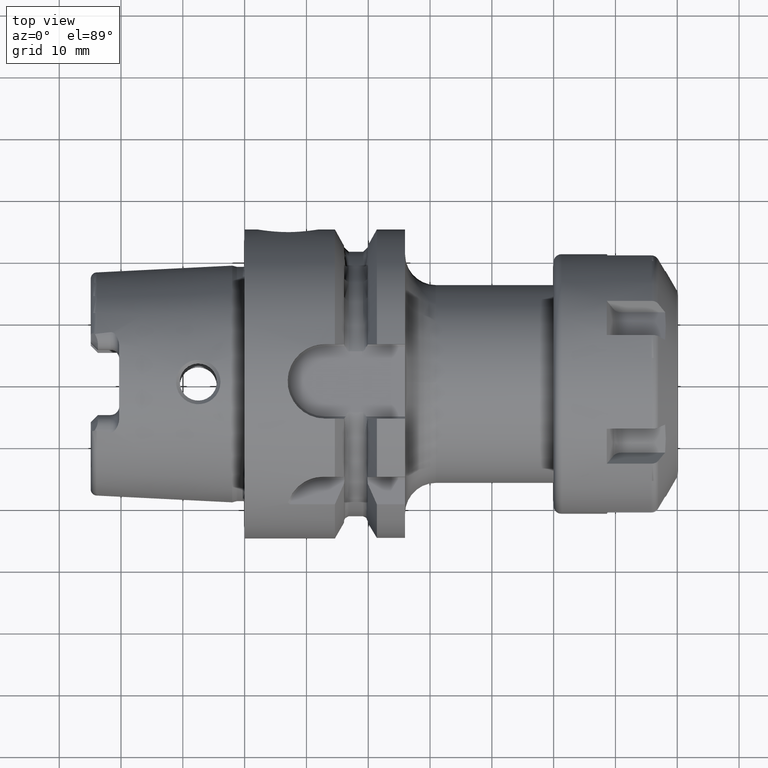
[diagram: clean part render]
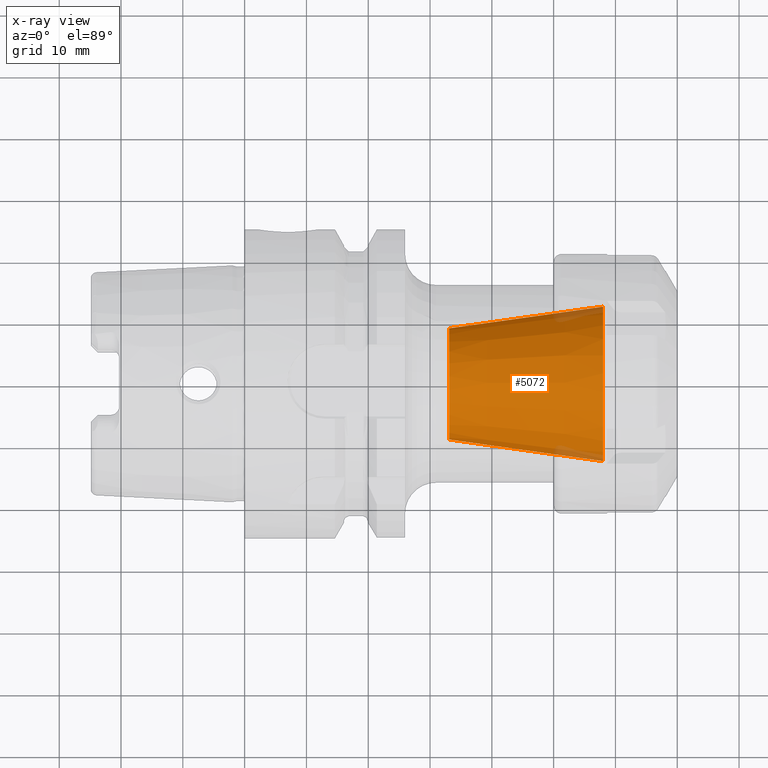
[diagram: x-ray — body ghosted, one internal face saturated and labeled with its STEP entity id]
A machine part, top view, then the same camera in x-ray: the body is ghosted and one INTERNAL B-rep face — a face not visible from any outside direction — is saturated and labeled: STEP entity #5072.
In plain terms, the highlighted conical surface has half-angle 8 deg.
Its self-contained STEP definition (entity closure, byte-faithful):
#1732=CARTESIAN_POINT('',(5.8E1,0.E0,0.E0));
#1733=DIRECTION('',(1.E0,0.E0,0.E0));
#1734=DIRECTION('',(0.E0,1.E0,0.E0));
#1735=AXIS2_PLACEMENT_3D('',#1732,#1733,#1734);
#1742=DIRECTION('',(-9.902680687416E-1,1.391731009601E-1,0.E0));
#1743=VECTOR('',#1742,2.514853787015E1);
#1744=CARTESIAN_POINT('',(5.8E1,-1.25E1,0.E0));
#1745=LINE('',#1744,#1743);
#1746=DIRECTION('',(-9.902680687416E-1,-1.391731009601E-1,0.E0));
#1747=VECTOR('',#1746,2.514853787015E1);
#1748=CARTESIAN_POINT('',(5.8E1,1.25E1,0.E0));
#1749=LINE('',#1748,#1747);
#1763=CARTESIAN_POINT('',(3.309620597166E1,0.E0,0.E0));
#1764=DIRECTION('',(1.E0,0.E0,0.E0));
#1765=DIRECTION('',(0.E0,1.E0,0.E0));
#1766=AXIS2_PLACEMENT_3D('',#1763,#1764,#1765);
#3249=CARTESIAN_POINT('',(3.309620597166E1,9.E0,0.E0));
#3251=VERTEX_POINT('',#3249);
#3253=CARTESIAN_POINT('',(3.309620597166E1,-9.E0,0.E0));
#3255=VERTEX_POINT('',#3253);
#3257=CARTESIAN_POINT('',(5.8E1,1.25E1,0.E0));
#3258=CARTESIAN_POINT('',(5.8E1,-1.25E1,0.E0));
#3259=VERTEX_POINT('',#3257);
#3260=VERTEX_POINT('',#3258);
#5058=CARTESIAN_POINT('',(4.554810298583E1,0.E0,0.E0));
#5059=DIRECTION('',(1.E0,0.E0,0.E0));
#5060=DIRECTION('',(0.E0,-1.E0,0.E0));
#5061=AXIS2_PLACEMENT_3D('',#5058,#5059,#5060);
#5062=CONICAL_SURFACE('',#5061,1.075E1,8.E0);
#5063=ORIENTED_EDGE('',*,*,#5051,.F.);
#5065=ORIENTED_EDGE('',*,*,#5064,.T.);
#5067=ORIENTED_EDGE('',*,*,#5066,.T.);
#5069=ORIENTED_EDGE('',*,*,#5068,.F.);
#5070=EDGE_LOOP('',(#5063,#5065,#5067,#5069));
#5071=FACE_OUTER_BOUND('',#5070,.F.);
#5072=ADVANCED_FACE('',(#5071),#5062,.F.);
#1736=CIRCLE('',#1735,1.25E1);
#1767=CIRCLE('',#1766,9.E0);
#5051=EDGE_CURVE('',#3259,#3260,#1736,.T.);
#5064=EDGE_CURVE('',#3259,#3251,#1749,.T.);
#5066=EDGE_CURVE('',#3251,#3255,#1767,.T.);
#5068=EDGE_CURVE('',#3260,#3255,#1745,.T.);